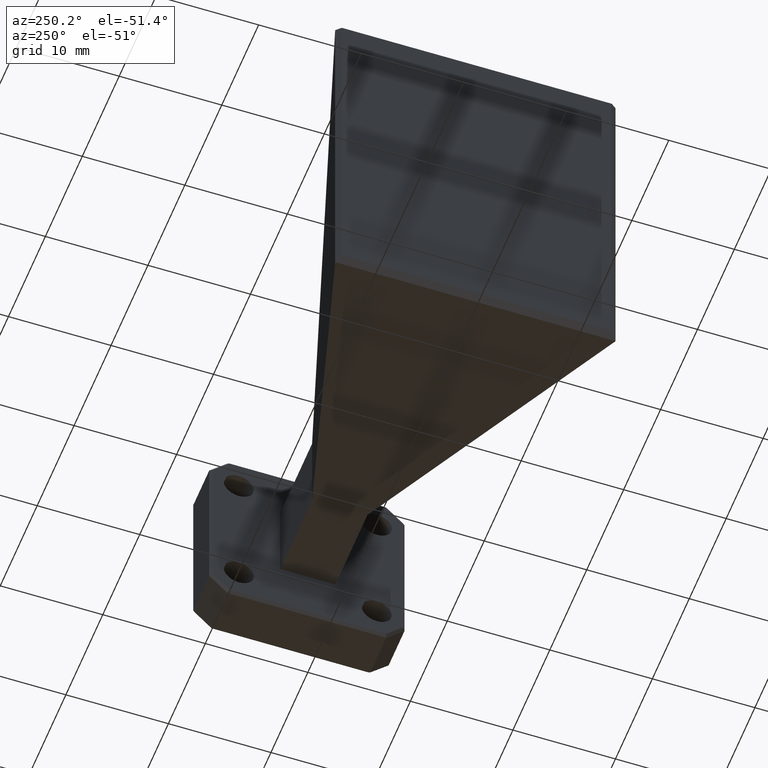
[diagram: clean part render]
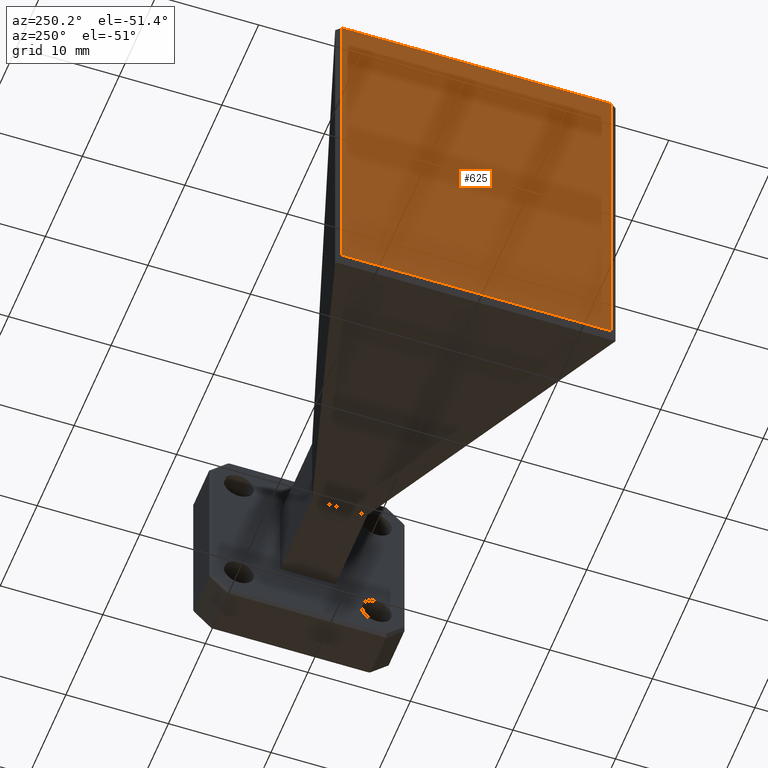
[diagram: same view with one face highlighted and labeled with its STEP entity id]
A machine part, auxiliary view. The second image highlights one B-rep face of the part: STEP entity #625.
In plain terms, the highlighted planar face has unit normal (-1, 0, -0).
Its self-contained STEP definition (entity closure, byte-faithful):
#8 = FACE_OUTER_BOUND ( 'NONE', #1548, .T. ) ;
#24 = DIRECTION ( 'NONE',  ( 0.0000000000000000000, -1.000000000000000000, 0.0000000000000000000 ) ) ;
#32 = DIRECTION ( 'NONE',  ( -1.000000000000000000, 0.0000000000000000000, -0.0000000000000000000 ) ) ;
#53 = VERTEX_POINT ( 'NONE', #615 ) ;
#216 = DIRECTION ( 'NONE',  ( 0.0000000000000000000, 0.0000000000000000000, 1.000000000000000000 ) ) ;
#275 = EDGE_CURVE ( 'NONE', #1400, #356, #572, .T. ) ;
#303 = EDGE_CURVE ( 'NONE', #1427, #53, #425, .T. ) ;
#310 = VECTOR ( 'NONE', #216, 39.37007874015748100 ) ;
#341 = CARTESIAN_POINT ( 'NONE',  ( -1.810000000000000100, -0.5149999999999999000, 0.6850000000000000500 ) ) ;
#356 = VERTEX_POINT ( 'NONE', #579 ) ;
#361 = EDGE_CURVE ( 'NONE', #53, #1400, #1334, .T. ) ;
#390 = PLANE ( 'NONE',  #718 ) ;
#394 = ORIENTED_EDGE ( 'NONE', *, *, #275, .T. ) ;
#404 = VECTOR ( 'NONE', #1307, 39.37007874015748100 ) ;
#425 = LINE ( 'NONE', #341, #310 ) ;
#458 = CARTESIAN_POINT ( 'NONE',  ( -1.810000000000000100, 0.5208907560442586100, 0.0000000000000000000 ) ) ;
#466 = CARTESIAN_POINT ( 'NONE',  ( -1.810000000000000100, 0.0000000000000000000, 0.6615138131083178100 ) ) ;
#477 = ORIENTED_EDGE ( 'NONE', *, *, #555, .T. ) ;
#491 = CARTESIAN_POINT ( 'NONE',  ( -1.810000000000000100, -0.5450000000000003700, -0.6550000000000001400 ) ) ;
#555 = EDGE_CURVE ( 'NONE', #356, #1427, #1101, .T. ) ;
#572 = LINE ( 'NONE', #458, #1103 ) ;
#579 = CARTESIAN_POINT ( 'NONE',  ( -1.810000000000000100, 0.5208907560442586100, -0.6550000000000001400 ) ) ;
#591 = ORIENTED_EDGE ( 'NONE', *, *, #303, .T. ) ;
#597 = ORIENTED_EDGE ( 'NONE', *, *, #361, .T. ) ;
#615 = CARTESIAN_POINT ( 'NONE',  ( -1.810000000000000100, -0.5149999999999999000, 0.6615138131083178100 ) ) ;
#622 = DIRECTION ( 'NONE',  ( -0.0000000000000000000, 0.0000000000000000000, 1.000000000000000000 ) ) ;
#625 = ADVANCED_FACE ( 'NONE', ( #8 ), #390, .T. ) ;
#718 = AXIS2_PLACEMENT_3D ( 'NONE', #1228, #32, #622 ) ;
#913 = CARTESIAN_POINT ( 'NONE',  ( -1.810000000000000100, 0.5208907560442586100, 0.6615138131083178100 ) ) ;
#1101 = LINE ( 'NONE', #491, #1446 ) ;
#1103 = VECTOR ( 'NONE', #1426, 39.37007874015748100 ) ;
#1151 = CARTESIAN_POINT ( 'NONE',  ( -1.810000000000000100, -0.5149999999999999000, -0.6550000000000001400 ) ) ;
#1228 = CARTESIAN_POINT ( 'NONE',  ( -1.810000000000000100, 0.0000000000000000000, 0.0000000000000000000 ) ) ;
#1307 = DIRECTION ( 'NONE',  ( 0.0000000000000000000, 1.000000000000000000, 0.0000000000000000000 ) ) ;
#1334 = LINE ( 'NONE', #466, #404 ) ;
#1400 = VERTEX_POINT ( 'NONE', #913 ) ;
#1426 = DIRECTION ( 'NONE',  ( 0.0000000000000000000, 0.0000000000000000000, -1.000000000000000000 ) ) ;
#1427 = VERTEX_POINT ( 'NONE', #1151 ) ;
#1446 = VECTOR ( 'NONE', #24, 39.37007874015748100 ) ;
#1548 = EDGE_LOOP ( 'NONE', ( #597, #394, #477, #591 ) ) ;